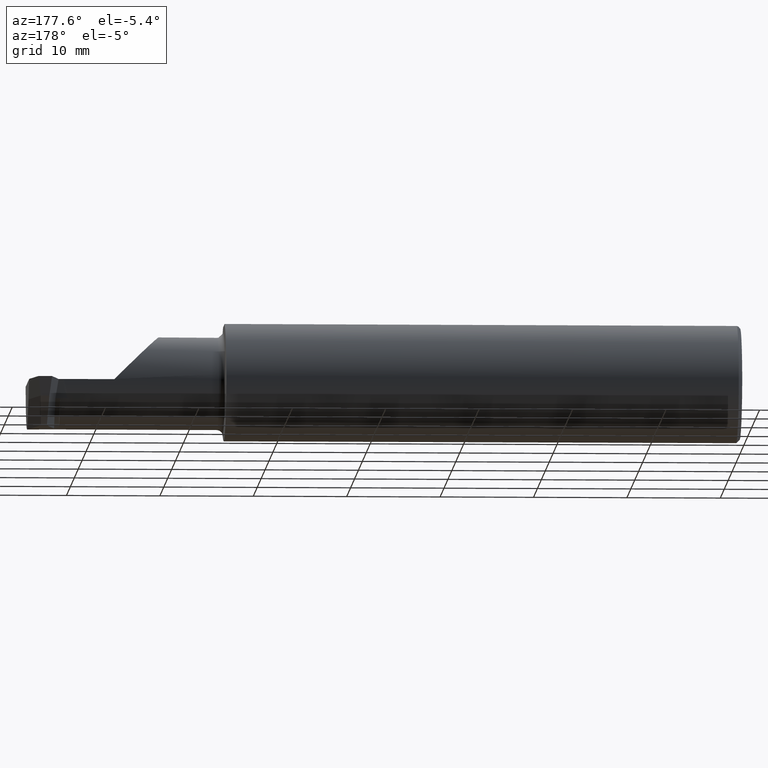
[diagram: clean part render]
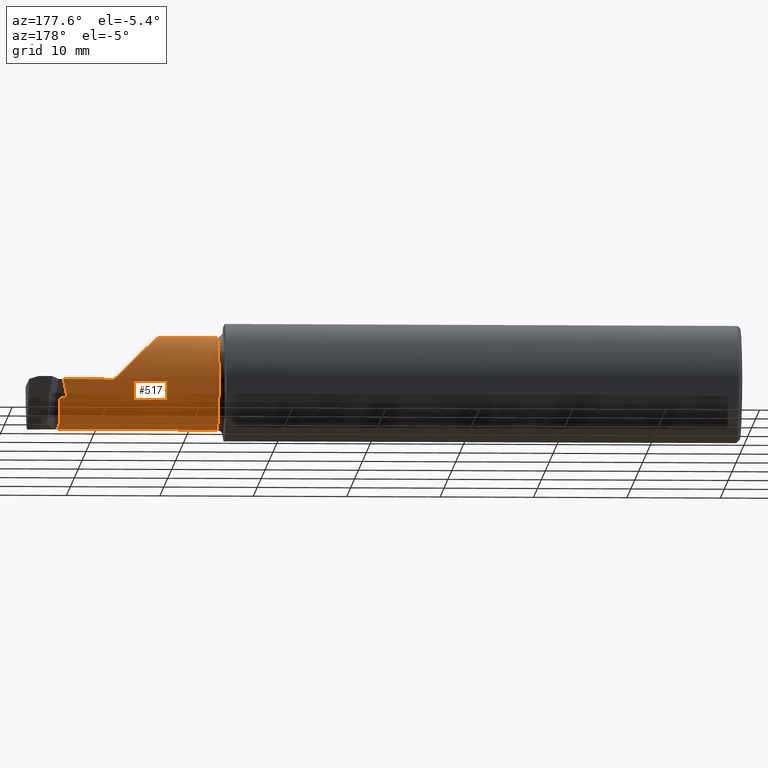
[diagram: same view with one face highlighted and labeled with its STEP entity id]
A machine part, auxiliary view. The second image highlights one B-rep face of the part: STEP entity #517.
In plain terms, the highlighted cylindrical surface (partial cylindrical patch) has radius 4.953 mm, axis along (-1, -0, -0).
Its self-contained STEP definition (entity closure, byte-faithful):
#2 = DIRECTION ( 'NONE',  ( 0.000000000000000000, 0.000000000000000000, 1.000000000000000000 ) ) ;
#10 = ORIENTED_EDGE ( 'NONE', *, *, #909, .T. ) ;
#13 = DIRECTION ( 'NONE',  ( 0.000000000000000000, 0.000000000000000000, 1.000000000000000000 ) ) ;
#17 = DIRECTION ( 'NONE',  ( 0.000000000000000000, 0.000000000000000000, 1.000000000000000000 ) ) ;
#19 = LINE ( 'NONE', #481, #402 ) ;
#50 = EDGE_LOOP ( 'NONE', ( #340, #751, #10, #858, #404, #812, #405, #150, #670, #135, #686, #604, #509 ) ) ;
#68 = DIRECTION ( 'NONE',  ( 0.000000000000000000, 0.000000000000000000, 1.000000000000000000 ) ) ;
#78 = LINE ( 'NONE', #530, #173 ) ;
#80 = CARTESIAN_POINT ( 'NONE',  ( 2.875000000000000444, -0.03642100170329706094, -0.1888905294713791316 ) ) ;
#89 = CARTESIAN_POINT ( 'NONE',  ( 2.875000000000000444, -0.08485000000000002263, 0.000000000000000000 ) ) ;
#93 = CARTESIAN_POINT ( 'NONE',  ( 2.869008559366363453, 0.09276125059353886038, -0.08049374921445398567 ) ) ;
#97 = CARTESIAN_POINT ( 'NONE',  ( 2.844738196388977070, 0.1045796707247016871, -0.05362832365497344905 ) ) ;
#101 = DIRECTION ( 'NONE',  ( -1.000000000000000000, -0.000000000000000000, -0.000000000000000000 ) ) ;
#125 = AXIS2_PLACEMENT_3D ( 'NONE', #744, #284, #68 ) ;
#129 = EDGE_CURVE ( 'NONE', #920, #390, #440, .T. ) ;
#135 = ORIENTED_EDGE ( 'NONE', *, *, #164, .T. ) ;
#150 = ORIENTED_EDGE ( 'NONE', *, *, #269, .F. ) ;
#151 = CARTESIAN_POINT ( 'NONE',  ( 2.856000360214729472, 0.1101499999999999285, 0.000000000000000000 ) ) ;
#164 = EDGE_CURVE ( 'NONE', #664, #359, #836, .T. ) ;
#166 = AXIS2_PLACEMENT_3D ( 'NONE', #528, #959, #595 ) ;
#170 = CIRCLE ( 'NONE', #884, 0.1950000000000000067 ) ;
#173 = VECTOR ( 'NONE', #296, 39.37007874015748143 ) ;
#178 = EDGE_CURVE ( 'NONE', #726, #283, #78, .T. ) ;
#185 = DIRECTION ( 'NONE',  ( -1.000000000000000000, -0.000000000000000000, -0.000000000000000000 ) ) ;
#197 = CARTESIAN_POINT ( 'NONE',  ( 2.869008559366363453, -0.08485000000000002263, 0.000000000000000000 ) ) ;
#199 = VECTOR ( 'NONE', #756, 39.37007874015748143 ) ;
#203 = CARTESIAN_POINT ( 'NONE',  ( 2.526400416310738084, 0.1093588493630081732, 0.1149495836892616141 ) ) ;
#215 = LINE ( 'NONE', #929, #384 ) ;
#246 = EDGE_CURVE ( 'NONE', #390, #651, #19, .T. ) ;
#249 = DIRECTION ( 'NONE',  ( 1.000000000000000000, 0.000000000000000000, 0.000000000000000000 ) ) ;
#269 = EDGE_CURVE ( 'NONE', #541, #869, #695, .T. ) ;
#274 = VECTOR ( 'NONE', #249, 39.37007874015748143 ) ;
#283 = VERTEX_POINT ( 'NONE', #781 ) ;
#284 = DIRECTION ( 'NONE',  ( -1.000000000000000000, -0.000000000000000000, -0.000000000000000000 ) ) ;
#296 = DIRECTION ( 'NONE',  ( -1.000000000000000000, -0.000000000000000000, -0.000000000000000000 ) ) ;
#298 = DIRECTION ( 'NONE',  ( -1.000000000000000000, -0.000000000000000000, -0.000000000000000000 ) ) ;
#340 = ORIENTED_EDGE ( 'NONE', *, *, #129, .T. ) ;
#359 = VERTEX_POINT ( 'NONE', #878 ) ;
#379 = VERTEX_POINT ( 'NONE', #415 ) ;
#384 = VECTOR ( 'NONE', #921, 39.37007874015748143 ) ;
#390 = VERTEX_POINT ( 'NONE', #438 ) ;
#391 = DIRECTION ( 'NONE',  ( -1.000000000000000000, -0.000000000000000000, -0.000000000000000000 ) ) ;
#402 = VECTOR ( 'NONE', #101, 39.37007874015748143 ) ;
#404 = ORIENTED_EDGE ( 'NONE', *, *, #457, .F. ) ;
#405 = ORIENTED_EDGE ( 'NONE', *, *, #875, .T. ) ;
#415 = CARTESIAN_POINT ( 'NONE',  ( 2.640000000000000124, 0.1101499999999999563, -6.123031769111885058E-17 ) ) ;
#438 = CARTESIAN_POINT ( 'NONE',  ( 2.875000000000000444, -0.08485000000000003650, -0.1950000000000000067 ) ) ;
#440 = CIRCLE ( 'NONE', #890, 0.1950000000000000067 ) ;
#457 = EDGE_CURVE ( 'NONE', #944, #726, #922, .T. ) ;
#468 = CARTESIAN_POINT ( 'NONE',  ( 2.200000000000000178, -0.08484999999999999487, -0.1950000000000000067 ) ) ;
#471 = VECTOR ( 'NONE', #826, 39.37007874015748143 ) ;
#481 = CARTESIAN_POINT ( 'NONE',  ( 2.175000000000000266, -0.08484999999999999487, -0.1950000000000000067 ) ) ;
#498 = CARTESIAN_POINT ( 'NONE',  ( 2.446350000000000691, -0.08485000000000002263, 0.1950000000000000067 ) ) ;
#505 = CYLINDRICAL_SURFACE ( 'NONE', #522, 0.1950000000000000067 ) ;
#509 = ORIENTED_EDGE ( 'NONE', *, *, #794, .T. ) ;
#516 = CARTESIAN_POINT ( 'NONE',  ( 2.869008559366363453, -0.03642100170329767156, -0.1888905294713793259 ) ) ;
#517 = ADVANCED_FACE ( 'NONE', ( #883 ), #505, .T. ) ;
#522 = AXIS2_PLACEMENT_3D ( 'NONE', #740, #391, #17 ) ;
#528 = CARTESIAN_POINT ( 'NONE',  ( 2.200000000000000178, -0.08485000000000002263, 0.000000000000000000 ) ) ;
#529 = CARTESIAN_POINT ( 'NONE',  ( 2.875000000000000444, 0.09367683510634322586, -0.07844213884713072127 ) ) ;
#530 = CARTESIAN_POINT ( 'NONE',  ( 2.175000000000000266, -0.08485000000000002263, 0.1950000000000000067 ) ) ;
#533 = EDGE_CURVE ( 'NONE', #359, #600, #924, .T. ) ;
#535 = EDGE_CURVE ( 'NONE', #664, #541, #215, .T. ) ;
#541 = VERTEX_POINT ( 'NONE', #899 ) ;
#553 = CIRCLE ( 'NONE', #125, 0.1950000000000000067 ) ;
#564 = CARTESIAN_POINT ( 'NONE',  ( 2.839527195321073005, 0.09367683510634315647, -0.07844213884713081841 ) ) ;
#574 = CARTESIAN_POINT ( 'NONE',  ( 2.446350000000000691, -0.08485000000000002263, 0.1950000000000000067 ) ) ;
#586 = CARTESIAN_POINT ( 'NONE',  ( 2.175000000000000266, -0.03642100170329806708, -0.1888905294713793814 ) ) ;
#595 = DIRECTION ( 'NONE',  ( 0.000000000000000000, 0.000000000000000000, -1.000000000000000000 ) ) ;
#600 = VERTEX_POINT ( 'NONE', #93 ) ;
#604 = ORIENTED_EDGE ( 'NONE', *, *, #729, .T. ) ;
#608 = CARTESIAN_POINT ( 'NONE',  ( 2.175000000000000266, 0.09276125059353794444, -0.08049374921445431874 ) ) ;
#651 = VERTEX_POINT ( 'NONE', #468 ) ;
#652 = DIRECTION ( 'NONE',  ( 0.000000000000000000, 8.755923056616228416E-16, -1.000000000000000000 ) ) ;
#660 = LINE ( 'NONE', #586, #274 ) ;
#664 = VERTEX_POINT ( 'NONE', #529 ) ;
#670 = ORIENTED_EDGE ( 'NONE', *, *, #535, .F. ) ;
#686 = ORIENTED_EDGE ( 'NONE', *, *, #533, .T. ) ;
#691 = DIRECTION ( 'NONE',  ( -1.000000000000000000, -0.000000000000000000, -0.000000000000000000 ) ) ;
#695 =( BOUNDED_CURVE ( )  B_SPLINE_CURVE ( 3, ( #564, #97, #946, #932 ),
 .UNSPECIFIED., .F., .F. ) 
 B_SPLINE_CURVE_WITH_KNOTS ( ( 4, 4 ),
 ( 1.156804228221839148, 1.570796326794896780 ),
 .UNSPECIFIED. ) 
 CURVE ( )  GEOMETRIC_REPRESENTATION_ITEM ( )  RATIONAL_B_SPLINE_CURVE ( ( 1.000000000000000000, 0.9857684695413670983, 0.9857684695413670983, 1.000000000000000000 ) ) 
 REPRESENTATION_ITEM ( '' )  );
#726 = VERTEX_POINT ( 'NONE', #574 ) ;
#729 = EDGE_CURVE ( 'NONE', #600, #955, #170, .T. ) ;
#739 = CARTESIAN_POINT ( 'NONE',  ( 2.175000000000000266, 0.1101499999999999840, -6.123031769111886291E-17 ) ) ;
#740 = CARTESIAN_POINT ( 'NONE',  ( 2.175000000000000266, -0.08485000000000002263, 0.000000000000000000 ) ) ;
#744 = CARTESIAN_POINT ( 'NONE',  ( 2.640000000000000124, -0.08485000000000002263, 0.000000000000000000 ) ) ;
#745 = CARTESIAN_POINT ( 'NONE',  ( 2.640000000000000124, 0.1101453268670816443, 0.001349999999999153743 ) ) ;
#750 = AXIS2_PLACEMENT_3D ( 'NONE', #89, #691, #13 ) ;
#751 = ORIENTED_EDGE ( 'NONE', *, *, #246, .T. ) ;
#756 = DIRECTION ( 'NONE',  ( 1.000000000000000000, 0.000000000000000000, 0.000000000000000000 ) ) ;
#764 = CARTESIAN_POINT ( 'NONE',  ( 2.875000000000000444, -0.08485000000000002263, 0.000000000000000000 ) ) ;
#781 = CARTESIAN_POINT ( 'NONE',  ( 2.200000000000000178, -0.08485000000000002263, 0.1950000000000000067 ) ) ;
#794 = EDGE_CURVE ( 'NONE', #955, #920, #660, .T. ) ;
#812 = ORIENTED_EDGE ( 'NONE', *, *, #847, .T. ) ;
#826 = DIRECTION ( 'NONE',  ( -1.000000000000000000, -0.000000000000000000, -0.000000000000000000 ) ) ;
#836 = CIRCLE ( 'NONE', #750, 0.1950000000000000067 ) ;
#847 = EDGE_CURVE ( 'NONE', #944, #379, #553, .T. ) ;
#858 = ORIENTED_EDGE ( 'NONE', *, *, #178, .F. ) ;
#861 = CIRCLE ( 'NONE', #166, 0.1950000000000000067 ) ;
#869 = VERTEX_POINT ( 'NONE', #151 ) ;
#875 = EDGE_CURVE ( 'NONE', #379, #869, #966, .T. ) ;
#878 = CARTESIAN_POINT ( 'NONE',  ( 2.875000000000000444, 0.09276125059353752811, -0.08049374921445526243 ) ) ;
#883 = FACE_OUTER_BOUND ( 'NONE', #50, .T. ) ;
#884 = AXIS2_PLACEMENT_3D ( 'NONE', #197, #185, #652 ) ;
#890 = AXIS2_PLACEMENT_3D ( 'NONE', #764, #298, #2 ) ;
#891 = CARTESIAN_POINT ( 'NONE',  ( 2.446349999999999802, 0.02875230614401349735, 0.1950000000000000344 ) ) ;
#899 = CARTESIAN_POINT ( 'NONE',  ( 2.839527195321073005, 0.09367683510634315647, -0.07844213884713081841 ) ) ;
#909 = EDGE_CURVE ( 'NONE', #651, #283, #861, .T. ) ;
#920 = VERTEX_POINT ( 'NONE', #80 ) ;
#921 = DIRECTION ( 'NONE',  ( -1.000000000000000000, -0.000000000000000000, -0.000000000000000000 ) ) ;
#922 =( BOUNDED_CURVE ( )  B_SPLINE_CURVE ( 3, ( #745, #203, #891, #498 ),
 .UNSPECIFIED., .F., .F. ) 
 B_SPLINE_CURVE_WITH_KNOTS ( ( 4, 4 ),
 ( 4.719312112611640408, 6.283185307179586232 ),
 .UNSPECIFIED. ) 
 CURVE ( )  GEOMETRIC_REPRESENTATION_ITEM ( )  RATIONAL_B_SPLINE_CURVE ( ( 1.000000000000000000, 0.8063668244950932262, 0.8063668244950932262, 1.000000000000000000 ) ) 
 REPRESENTATION_ITEM ( '' )  );
#924 = LINE ( 'NONE', #608, #471 ) ;
#929 = CARTESIAN_POINT ( 'NONE',  ( 2.174999999999999822, 0.09367683510634208788, -0.07844213884713328866 ) ) ;
#932 = CARTESIAN_POINT ( 'NONE',  ( 2.856000360214729472, 0.1101499999999999285, 0.000000000000000000 ) ) ;
#944 = VERTEX_POINT ( 'NONE', #974 ) ;
#946 = CARTESIAN_POINT ( 'NONE',  ( 2.850308525664275727, 0.1101499999999999702, -0.02710345455678095025 ) ) ;
#955 = VERTEX_POINT ( 'NONE', #516 ) ;
#959 = DIRECTION ( 'NONE',  ( 1.000000000000000000, 0.000000000000000000, 0.000000000000000000 ) ) ;
#966 = LINE ( 'NONE', #739, #199 ) ;
#974 = CARTESIAN_POINT ( 'NONE',  ( 2.640000000000000124, 0.1101453268670816443, 0.001349999999999153743 ) ) ;